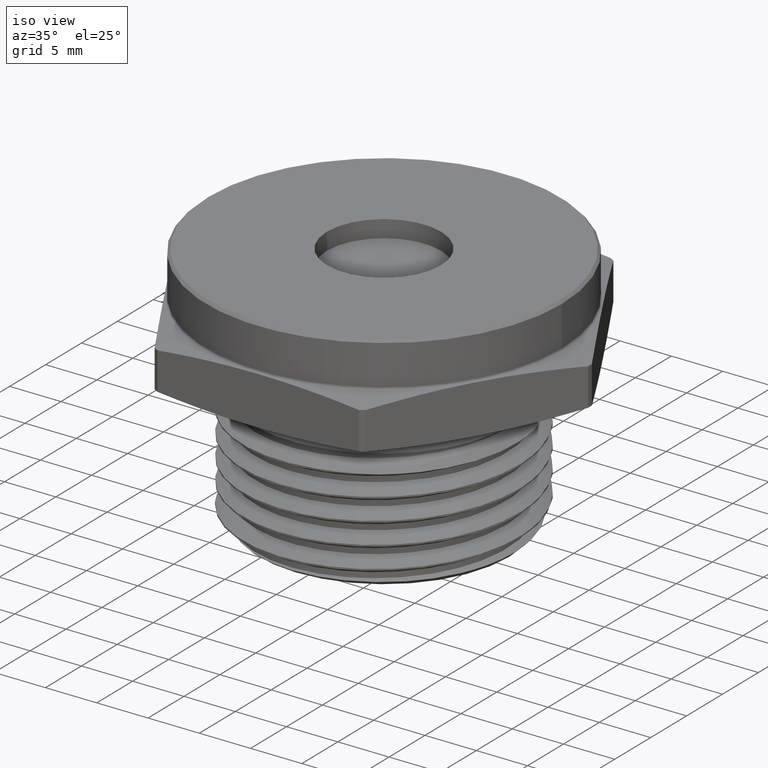
[diagram: clean part render]
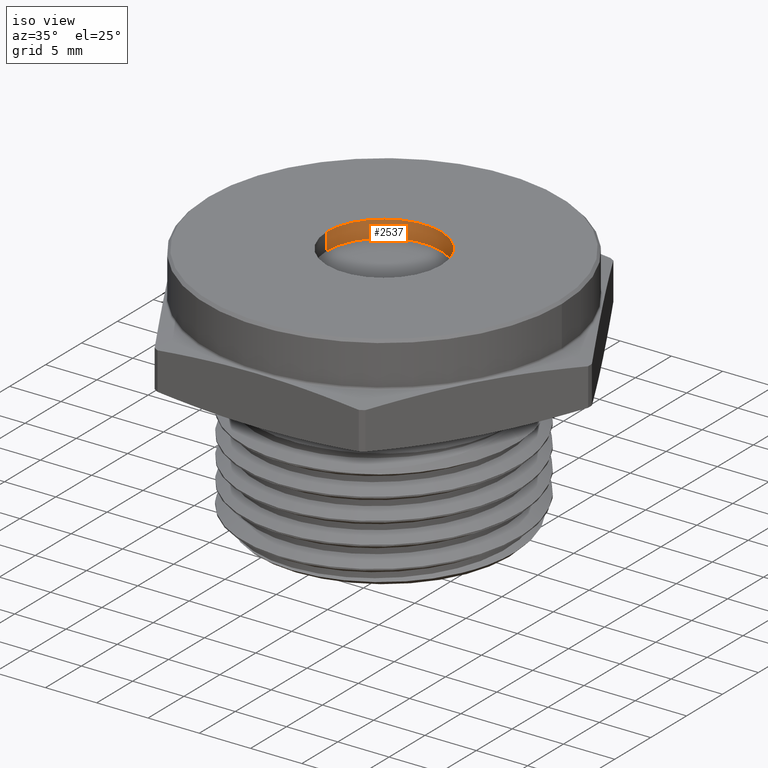
[diagram: same view with one face highlighted and labeled with its STEP entity id]
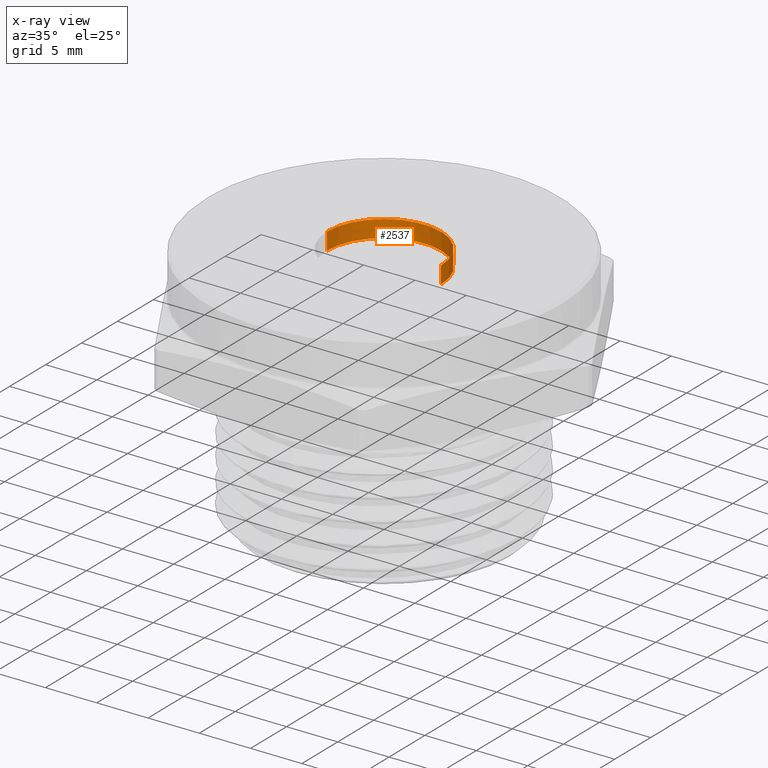
[diagram: x-ray of the same camera — body ghosted, the highlighted face saturated]
A machine part, iso view. The second image highlights one B-rep face of the part: STEP entity #2537.
The next image is the same camera in x-ray: the body ghosted, the highlighted face saturated — about 0% of this face is hidden behind the body in this view.
In plain terms, the highlighted cylindrical surface (partial cylindrical patch) has radius 5.5626 mm, axis along (-0, -0, 1).
Its self-contained STEP definition (entity closure, byte-faithful):
#39 = VERTEX_POINT ( 'NONE', #2760 ) ;
#49 = VERTEX_POINT ( 'NONE', #2861 ) ;
#64 = VERTEX_POINT ( 'NONE', #2845 ) ;
#73 = VERTEX_POINT ( 'NONE', #2836 ) ;
#930 = AXIS2_PLACEMENT_3D ( 'NONE', #3201, #3202, #3203 ) ;
#935 = AXIS2_PLACEMENT_3D ( 'NONE', #3287, #3288, #3289 ) ;
#948 = AXIS2_PLACEMENT_3D ( 'NONE', #1278, #1269, #1274 ) ;
#1130 = DIRECTION ( 'NONE',  ( -0.0000000000000000000, -0.0000000000000000000, 1.000000000000000000 ) ) ;
#1160 = CARTESIAN_POINT ( 'NONE',  ( 0.2189999999999999700, 0.0000000000000000000, 0.4770422549202507100 ) ) ;
#1161 = DIRECTION ( 'NONE',  ( -0.0000000000000000000, -0.0000000000000000000, 1.000000000000000000 ) ) ;
#1163 = CARTESIAN_POINT ( 'NONE',  ( -0.2189999999999999700, 2.681976490132703100E-017, 0.4770422549202507100 ) ) ;
#1269 = DIRECTION ( 'NONE',  ( -0.0000000000000000000, -0.0000000000000000000, 1.000000000000000000 ) ) ;
#1274 = DIRECTION ( 'NONE',  ( 1.000000000000000000, 0.0000000000000000000, 0.0000000000000000000 ) ) ;
#1278 = CARTESIAN_POINT ( 'NONE',  ( 0.0000000000000000000, 0.0000000000000000000, 0.4770422549202507100 ) ) ;
#1647 = EDGE_LOOP ( 'NONE', ( #2516, #2517, #2518, #2519 ) ) ;
#1870 = CIRCLE ( 'NONE', #930, 0.2189999999999999700 ) ;
#1874 = CIRCLE ( 'NONE', #935, 0.2189999999999999700 ) ;
#1888 = LINE ( 'NONE', #1163, #1895 ) ;
#1891 = LINE ( 'NONE', #1160, #1892 ) ;
#1892 = VECTOR ( 'NONE', #1161, 39.37007874015748100 ) ;
#1895 = VECTOR ( 'NONE', #1130, 39.37007874015748100 ) ;
#1897 = FACE_OUTER_BOUND ( 'NONE', #1647, .T. ) ;
#1905 = CYLINDRICAL_SURFACE ( 'NONE', #948, 0.2189999999999999700 ) ;
#2442 = EDGE_CURVE ( 'NONE', #64, #39, #1870, .T. ) ;
#2450 = EDGE_CURVE ( 'NONE', #73, #49, #1874, .T. ) ;
#2466 = EDGE_CURVE ( 'NONE', #73, #64, #1891, .T. ) ;
#2468 = EDGE_CURVE ( 'NONE', #49, #39, #1888, .T. ) ;
#2516 = ORIENTED_EDGE ( 'NONE', *, *, #2468, .F. ) ;
#2517 = ORIENTED_EDGE ( 'NONE', *, *, #2450, .F. ) ;
#2518 = ORIENTED_EDGE ( 'NONE', *, *, #2466, .T. ) ;
#2519 = ORIENTED_EDGE ( 'NONE', *, *, #2442, .T. ) ;
#2537 = ADVANCED_FACE ( 'NONE', ( #1897 ), #1905, .F. ) ;
#2760 = CARTESIAN_POINT ( 'NONE',  ( -0.2189999999999999700, 2.681976490132703100E-017, 0.3599999999999999900 ) ) ;
#2836 = CARTESIAN_POINT ( 'NONE',  ( 0.2189999999999999700, 0.0000000000000000000, 0.2939999999999999800 ) ) ;
#2845 = CARTESIAN_POINT ( 'NONE',  ( 0.2189999999999999700, 0.0000000000000000000, 0.3599999999999999900 ) ) ;
#2861 = CARTESIAN_POINT ( 'NONE',  ( -0.2189999999999999700, 2.681976490132703100E-017, 0.2939999999999999800 ) ) ;
#3201 = CARTESIAN_POINT ( 'NONE',  ( 0.0000000000000000000, 0.0000000000000000000, 0.3599999999999999900 ) ) ;
#3202 = DIRECTION ( 'NONE',  ( -0.0000000000000000000, -0.0000000000000000000, 1.000000000000000000 ) ) ;
#3203 = DIRECTION ( 'NONE',  ( 1.000000000000000000, 0.0000000000000000000, 0.0000000000000000000 ) ) ;
#3287 = CARTESIAN_POINT ( 'NONE',  ( 0.0000000000000000000, 0.0000000000000000000, 0.2939999999999999800 ) ) ;
#3288 = DIRECTION ( 'NONE',  ( -0.0000000000000000000, -0.0000000000000000000, 1.000000000000000000 ) ) ;
#3289 = DIRECTION ( 'NONE',  ( 1.000000000000000000, 0.0000000000000000000, 0.0000000000000000000 ) ) ;